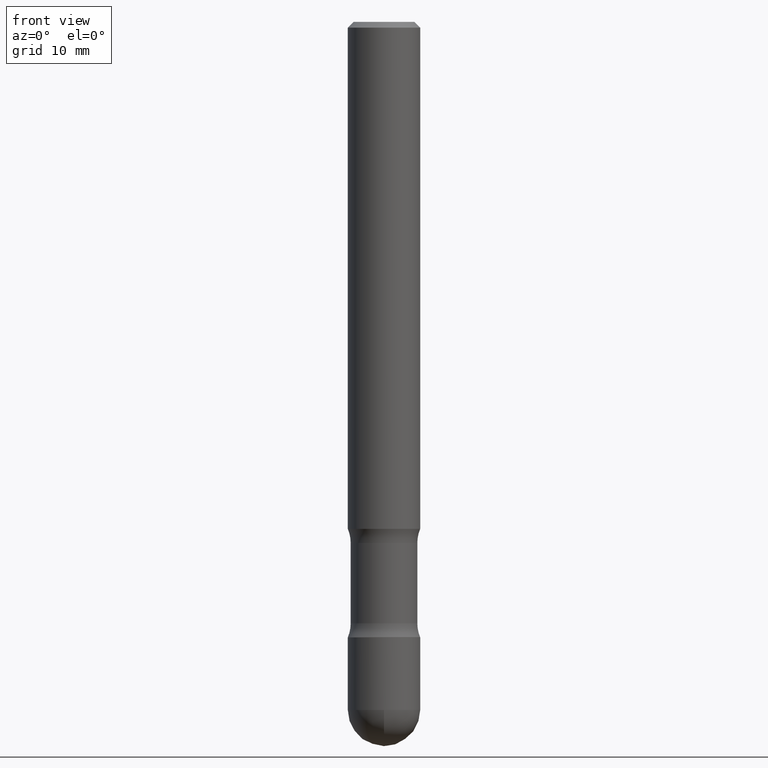
[diagram: clean part render]
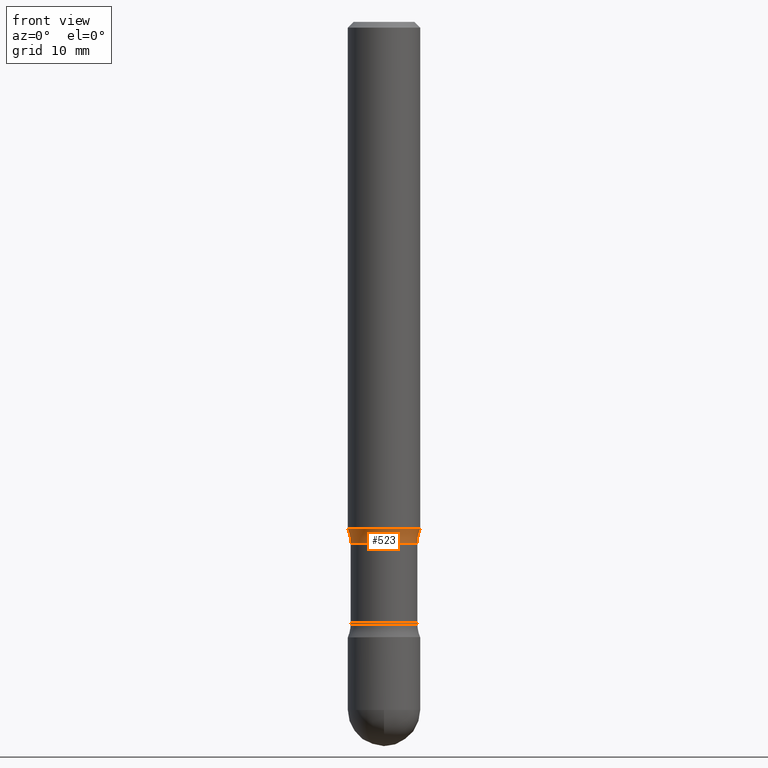
[diagram: same view with one face highlighted and labeled with its STEP entity id]
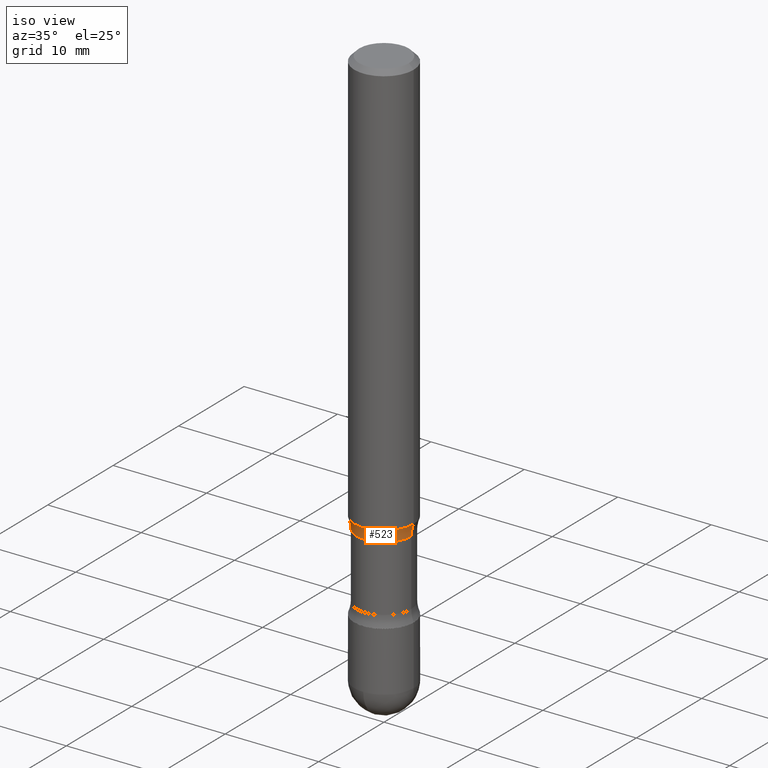
[diagram: same view with one face highlighted and labeled with its STEP entity id]
A machine part, front view. The second image highlights one B-rep face of the part: STEP entity #523.
A second angle (iso view) of the same face is appended — the face is thin or edge-on in the first view.
In plain terms, the highlighted toroidal blend (fillet) surface has major radius 6.096 mm and minor (blend) radius 3.175 mm.
Its self-contained STEP definition (entity closure, byte-faithful):
#9 = CIRCLE ( 'NONE', #82, 0.1249999999999999584 ) ;
#32 = EDGE_CURVE ( 'NONE', #56, #61, #101, .T. ) ;
#41 = DIRECTION ( 'NONE',  ( 1.000000000000000000, -6.982962677686267499E-15, 0.000000000000000000 ) ) ;
#43 = EDGE_CURVE ( 'NONE', #389, #400, #9, .T. ) ;
#45 = CARTESIAN_POINT ( 'NONE',  ( 0.1249999999999999584, -3.947523234597624247E-15, -1.750000000000001776 ) ) ;
#56 = VERTEX_POINT ( 'NONE', #326 ) ;
#61 = VERTEX_POINT ( 'NONE', #452 ) ;
#82 = AXIS2_PLACEMENT_3D ( 'NONE', #341, #296, #466 ) ;
#101 = CIRCLE ( 'NONE', #183, 0.1149999999999995609 ) ;
#116 = FACE_OUTER_BOUND ( 'NONE', #317, .T. ) ;
#148 = DIRECTION ( 'NONE',  ( 6.860497997771531562E-15, 1.000000000000000000, -3.491481338843145583E-15 ) ) ;
#164 = ORIENTED_EDGE ( 'NONE', *, *, #43, .T. ) ;
#183 = AXIS2_PLACEMENT_3D ( 'NONE', #448, #413, #555 ) ;
#184 = AXIS2_PLACEMENT_3D ( 'NONE', #307, #213, #41 ) ;
#213 = DIRECTION ( 'NONE',  ( -6.982962677686266711E-15, -1.000000000000000000, 3.491481338843145583E-15 ) ) ;
#238 = EDGE_CURVE ( 'NONE', #56, #389, #558, .T. ) ;
#242 = CIRCLE ( 'NONE', #184, 0.1249999999999883843 ) ;
#294 = ORIENTED_EDGE ( 'NONE', *, *, #238, .T. ) ;
#296 = DIRECTION ( 'NONE',  ( 2.445468806185136597E-29, -3.491481338843145583E-15, -1.000000000000000000 ) ) ;
#307 = CARTESIAN_POINT ( 'NONE',  ( -0.2399999999999879452, -4.605228254863190623E-15, -1.798989794855664126 ) ) ;
#317 = EDGE_LOOP ( 'NONE', ( #471, #294, #164, #406 ) ) ;
#324 = DIRECTION ( 'NONE',  ( -1.000000000000000000, 6.860497997771530774E-15, 0.000000000000000000 ) ) ;
#326 = CARTESIAN_POINT ( 'NONE',  ( 0.1149999999999995609, -7.018875579974243082E-15, -1.798989794855664126 ) ) ;
#341 = CARTESIAN_POINT ( 'NONE',  ( 4.279570410823993529E-29, -6.110092342975510982E-15, -1.750000000000001776 ) ) ;
#348 = EDGE_CURVE ( 'NONE', #61, #400, #242, .T. ) ;
#371 = TOROIDAL_SURFACE ( 'NONE', #378, 0.2399999999999879452, 0.1249999999999883843 ) ;
#378 = AXIS2_PLACEMENT_3D ( 'NONE', #402, #544, #534 ) ;
#381 = AXIS2_PLACEMENT_3D ( 'NONE', #539, #148, #324 ) ;
#389 = VERTEX_POINT ( 'NONE', #45 ) ;
#400 = VERTEX_POINT ( 'NONE', #480 ) ;
#402 = CARTESIAN_POINT ( 'NONE',  ( 4.399373425964925266E-29, -6.281139297507810384E-15, -1.798989794855664126 ) ) ;
#406 = ORIENTED_EDGE ( 'NONE', *, *, #348, .F. ) ;
#413 = DIRECTION ( 'NONE',  ( 2.445468806185136597E-29, -3.491481338843145583E-15, -1.000000000000000000 ) ) ;
#448 = CARTESIAN_POINT ( 'NONE',  ( 4.399373425964925266E-29, -6.281139297507810384E-15, -1.798989794855664126 ) ) ;
#452 = CARTESIAN_POINT ( 'NONE',  ( -0.1149999999999995609, -5.478098589573892710E-15, -1.798989794855664126 ) ) ;
#466 = DIRECTION ( 'NONE',  ( -1.000000000000000000, 6.982962677686265133E-15, 0.000000000000000000 ) ) ;
#471 = ORIENTED_EDGE ( 'NONE', *, *, #32, .F. ) ;
#480 = CARTESIAN_POINT ( 'NONE',  ( -0.1249999999999999584, -5.237222008264728432E-15, -1.750000000000001776 ) ) ;
#523 = ADVANCED_FACE ( 'NONE', ( #116 ), #371, .F. ) ;
#534 = DIRECTION ( 'NONE',  ( -1.000000000000000000, 6.982962677686266711E-15, -4.883557194083112340E-29 ) ) ;
#539 = CARTESIAN_POINT ( 'NONE',  ( 0.2399999999999879452, -7.927658816972895507E-15, -1.798989794855664126 ) ) ;
#544 = DIRECTION ( 'NONE',  ( 2.445468806185136597E-29, -3.491481338843145583E-15, -1.000000000000000000 ) ) ;
#555 = DIRECTION ( 'NONE',  ( -1.000000000000000000, 6.982962677686266711E-15, 0.000000000000000000 ) ) ;
#558 = CIRCLE ( 'NONE', #381, 0.1249999999999883843 ) ;